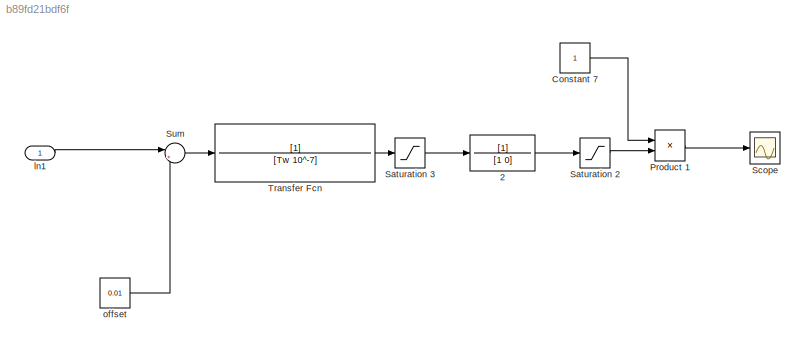
MODEL slx_b89fd21bdf6f
KIND model
CONFIG AbsTol = auto
CONFIG EnableMultiTasking = off
CONFIG FixedStep = auto
CONFIG MaxStep = auto
CONFIG MinStep = auto
CONFIG RelTol = 1e-3
CONFIG SampleTimeConstraint = Unconstrained
CONFIG SolverName = VariableStepAuto
CONFIG StartTime = 0.0
CONFIG StopTime = 10.0
WORKSPACE source: mxarray member
WORKSPACE Tw: Simulink.Parameter (value not decoded)
BLOCK [TransferFcn] 2
  Denominator = [1 0]
BLOCK [Constant] Constant 7
BLOCK [Product] Product 1
  Ports = [2, 1]
BLOCK [Saturate] Saturation 2
BLOCK [Saturate] Saturation 3
BLOCK [Scope] Scope
  Floating = off
  NumInputPorts = 1
  Ports = [1]
  ScopeSpecificationString = Simulink.scopes.TimeScopeBlockCfg('CurrentConfiguration', extmgr.ConfigurationSet(extmgr.Configuration('Core','General UI',true),extmgr.Configuration('Core','Source UI',true),extmgr.Configuration('Sources','WiredSimulink',true),extmgr.Configuration('Visuals','Time Domain',true,'SerializedDisplays',{struct('MinYLimReal','-0.0625','MaxYLimReal','0.5625','YLabelReal','','MinYLimMag','0.00000','MaxYLi...<+1323ch>
BLOCK [Sum] Sum
  Inputs = |++
  Ports = [2, 1]
BLOCK [TransferFcn] Transfer Fcn
  Denominator = [Tw 10^-7]
BLOCK [Inport] ln1
BLOCK [Constant] offset
  Value = 0.01
LINE 2:1 -> Saturation 2:1
LINE Constant 7:1 -> Product 1:1
LINE Product 1:1 -> Scope:1
LINE Saturation 2:1 -> Product 1:2
LINE Saturation 3:1 -> 2:1
LINE Sum:1 -> Transfer Fcn:1
LINE Transfer Fcn:1 -> Saturation 3:1
LINE ln1:1 -> Sum:1
LINE offset:1 -> Sum:2
